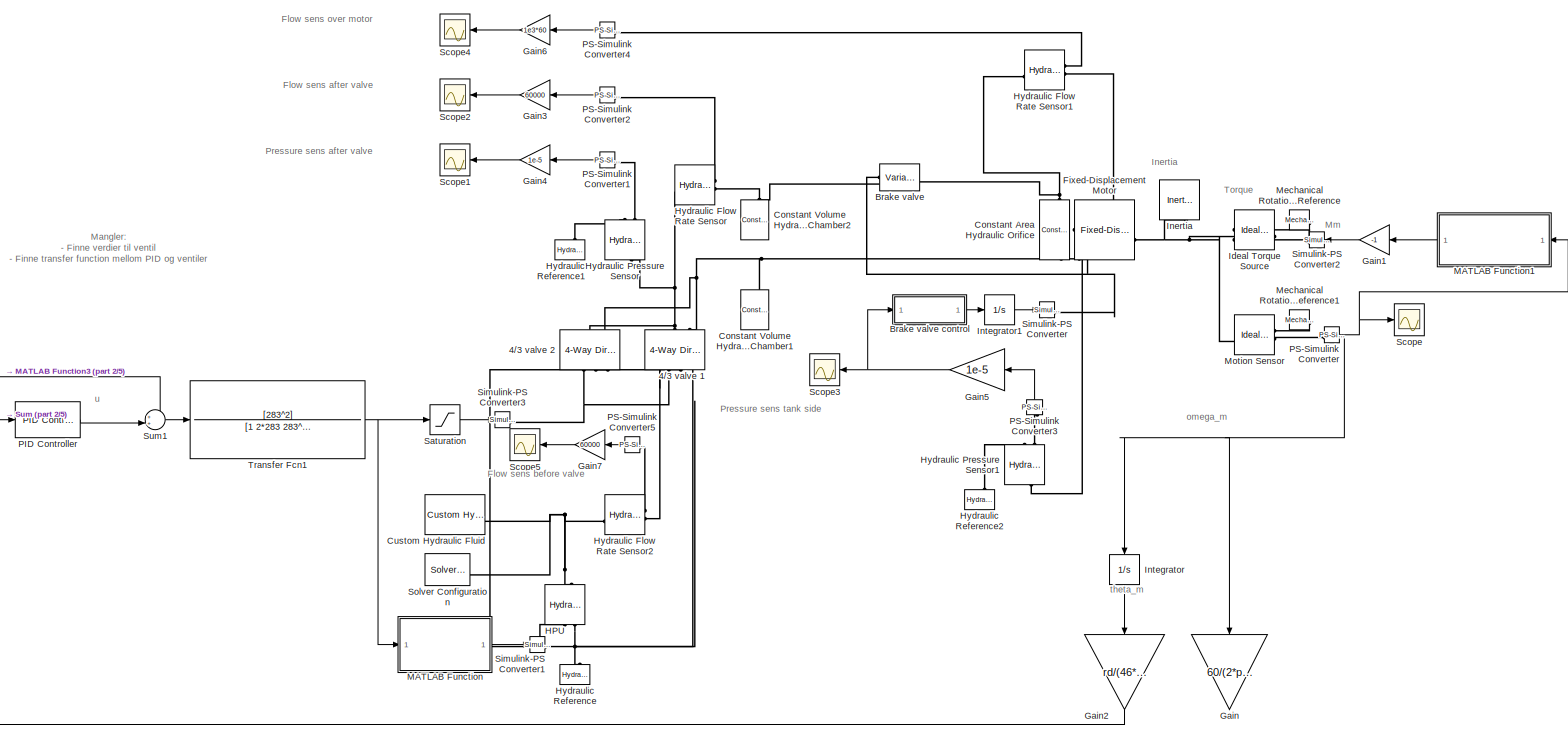
[diagram: root canvas - part 1/5, top center region]
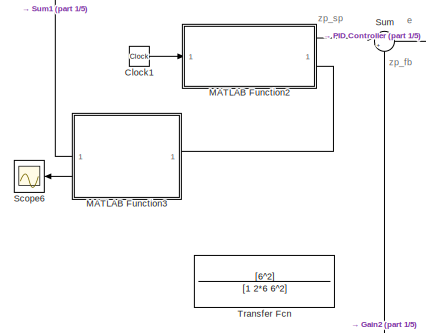
[diagram: root canvas - part 2/5, middle left region]
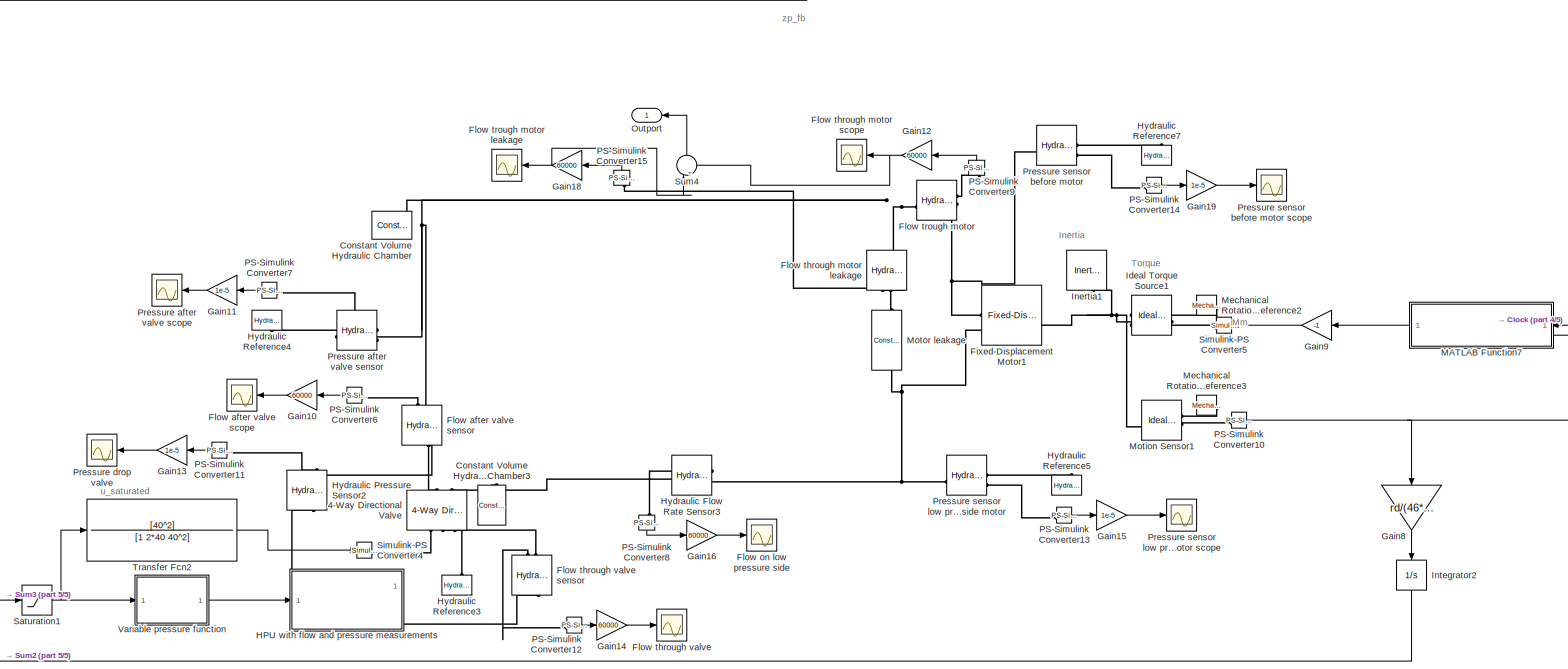
[diagram: root canvas - part 3/5, bottom center region]
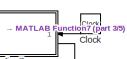
[diagram: root canvas - part 4/5, bottom right region]
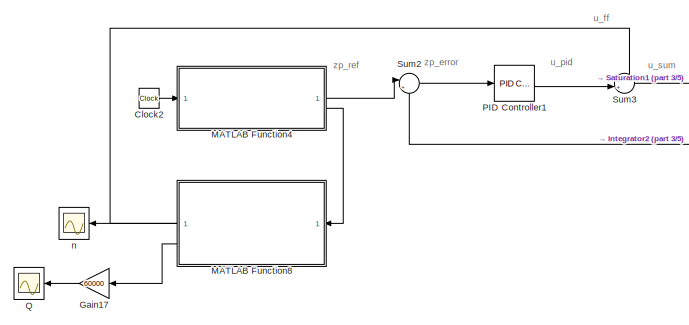
[diagram: root canvas - part 5/5, bottom left region]
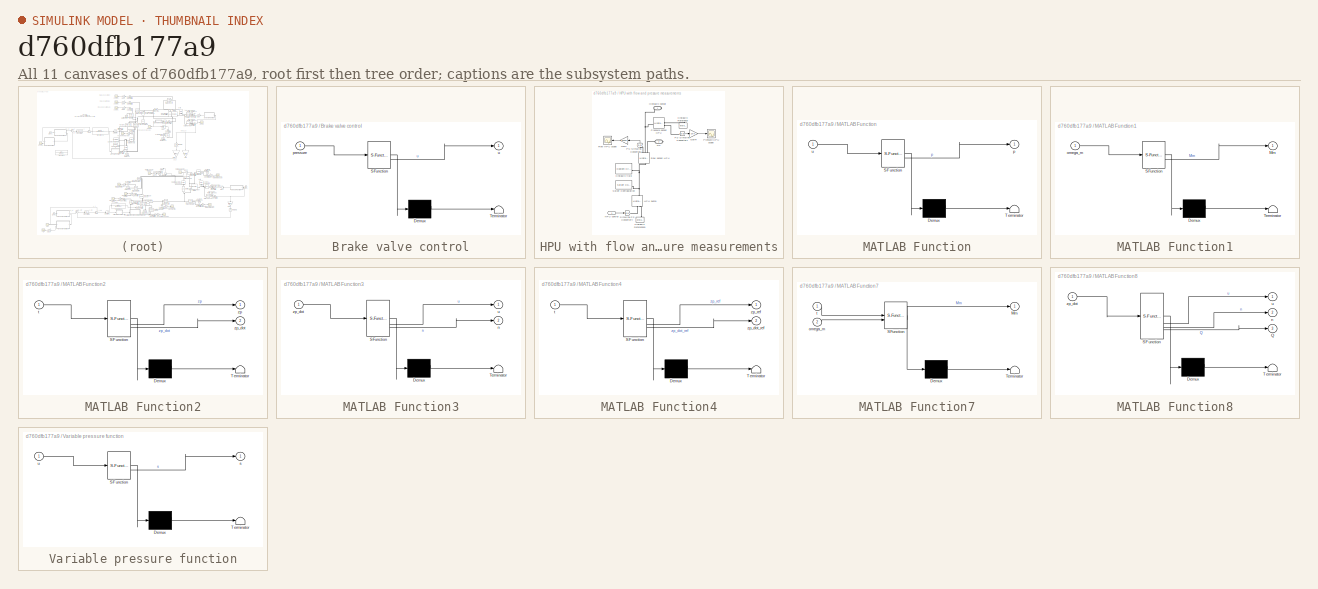
[diagram: thumbnail index - all 11 canvases of the model, root first then tree order]
MODEL slx_d760dfb177a9
KIND model
CONFIG AbsTol = auto
CONFIG EnableMultiTasking = off
CONFIG FixedStep = auto
CONFIG MaxStep = auto
CONFIG MinStep = auto
CONFIG RelTol = 1e-3
CONFIG SampleTimeConstraint = Unconstrained
CONFIG SolverName = VariableStepAuto
CONFIG StartTime = 0.0
CONFIG StopTime = 20
WORKSPACE source: MATLAB code (in-file)
WORKSPACE rho = 875
WORKSPACE P_r = 70e5  (= 7000000)
WORKSPACE Cd = 0.7
WORKSPACE Q_r = 200/6e4  (= 0.00333333333333)
WORKSPACE AdMax = Q_r/Cd/sqrt(2/rho*P_r/2)
WORKSPACE g = 9.81
WORKSPACE zw = 0.8
WORKSPACE tw = 10
WORKSPACE ig = 46
WORKSPACE m = 9000
WORKSPACE mueq = 0.15
WORKSPACE dd = 0.45
WORKSPACE nyv = 0.92
WORKSPACE rd = dd/2  (= 0.225)
WORKSPACE omega0 = 5
WORKSPACE omegap = 1500
WORKSPACE nsh = 3
WORKSPACE gearrationsh = nsh.*2
BLOCK [Reference] 4-Way Directional Valve  REF=sh_lib/Valves/Directional Valves/4-Way Directional
Valve
  NameLocation = right
  SourceBlock = sh_lib/Valves/Directional Valves/4-Way Directional\nValve
  SourceType = 4-Way Directional\nValve
BLOCK [Reference] 4//3 valve 1  REF=sh_lib/Valves/Directional Valves/4-Way Directional
Valve
  Commented = on
  NameLocation = right
  SourceBlock = sh_lib/Valves/Directional Valves/4-Way Directional\nValve
  SourceType = 4-Way Directional\nValve
BLOCK [Reference] 4//3 valve 2  REF=sh_lib/Valves/Directional Valves/4-Way Directional
Valve
  Commented = on
  NameLocation = left
  SourceBlock = sh_lib/Valves/Directional Valves/4-Way Directional\nValve
  SourceType = 4-Way Directional\nValve
BLOCK [Reference] Brake valve  REF=sh_lib/Orifices/Variable Orifice
  Commented = on
  SourceBlock = sh_lib/Orifices/Variable Orifice
  SourceType = Variable Orifice
BLOCK [SubSystem] Brake valve control
  Commented = on
  ErrorFcn = Stateflow.Translate.translate
  LibrarySourceBlock = simulink/User-Defined\nFunctions/MATLAB Function
  PermitHierarchicalResolution = ExplicitOnly
  SFBlockType = MATLAB Function
  TreatAsAtomicUnit = on
BLOCK [Demux] Brake valve control/ Demux 
  Outputs = 1
BLOCK [S-Function] Brake valve control/ SFunction 
  EnableBusSupport = on
  FunctionName = sf_sfun
  PortCounts = [1 2]
  SFcnIsStateOwnerBlock = off
  SFunctionDeploymentMode = off
  Tag = Stateflow S-Function 2
BLOCK [Terminator] Brake valve control/ Terminator 
BLOCK [Inport] Brake valve control/pressure
BLOCK [Outport] Brake valve control/u
BLOCK [Clock] Clock
  NameLocation = top
BLOCK [Clock] Clock1
  Commented = on
BLOCK [Clock] Clock2
BLOCK [Reference] Constant Area Hydraulic Orifice  REF=fl_lib/Hydraulic/Hydraulic Elements/Constant Area
Hydraulic Orifice
  Commented = on
  NameLocation = left
  SourceBlock = fl_lib/Hydraulic/Hydraulic Elements/Constant Area\nHydraulic Orifice
  SourceType = Constant Area\nHydraulic Orifice
BLOCK [Reference] Constant Volume Hydraulic Chamber  REF=fl_lib/Hydraulic/Hydraulic Elements/Constant Volume
Hydraulic Chamber
  SourceBlock = fl_lib/Hydraulic/Hydraulic Elements/Constant Volume\nHydraulic Chamber
  SourceType = Constant Volume\nHydraulic Chamber
BLOCK [Reference] Constant Volume Hydraulic Chamber1  REF=fl_lib/Hydraulic/Hydraulic Elements/Constant Volume
Hydraulic Chamber
  Commented = on
  NameLocation = right
  SourceBlock = fl_lib/Hydraulic/Hydraulic Elements/Constant Volume\nHydraulic Chamber
  SourceType = Constant Volume\nHydraulic Chamber
BLOCK [Reference] Constant Volume Hydraulic Chamber2  REF=fl_lib/Hydraulic/Hydraulic Elements/Constant Volume
Hydraulic Chamber
  Commented = on
  NameLocation = right
  SourceBlock = fl_lib/Hydraulic/Hydraulic Elements/Constant Volume\nHydraulic Chamber
  SourceType = Constant Volume\nHydraulic Chamber
BLOCK [Reference] Constant Volume Hydraulic Chamber3  REF=fl_lib/Hydraulic/Hydraulic Elements/Constant Volume
Hydraulic Chamber
  NameLocation = right
  SourceBlock = fl_lib/Hydraulic/Hydraulic Elements/Constant Volume\nHydraulic Chamber
  SourceType = Constant Volume\nHydraulic Chamber
BLOCK [Reference] Custom Hydraulic Fluid  REF=fl_lib/Hydraulic/Hydraulic Utilities/Custom Hydraulic
Fluid
  Commented = on
  SourceBlock = fl_lib/Hydraulic/Hydraulic Utilities/Custom Hydraulic\nFluid
  SourceType = Custom Hydraulic\nFluid
BLOCK [Reference] Fixed-Displacement Motor  REF=sh_lib/Pumps and Motors/Fixed-Displacement
Motor
  Commented = on
  SourceBlock = sh_lib/Pumps and Motors/Fixed-Displacement\nMotor
  SourceType = Fixed-Displacement\nMotor
BLOCK [Reference] Fixed-Displacement Motor1  REF=sh_lib/Pumps and Motors/Fixed-Displacement
Motor
  SourceBlock = sh_lib/Pumps and Motors/Fixed-Displacement\nMotor
  SourceType = Fixed-Displacement\nMotor
BLOCK [Scope] Flow after valve scope
  Floating = off
  NameLocation = top
  NumInputPorts = 1
  ScopeSpecificationString = Simulink.scopes.TimeScopeBlockCfg('CurrentConfiguration', extmgr.ConfigurationSet(extmgr.Configuration('Core','General UI',true),extmgr.Configuration('Core','Source UI',true),extmgr.Configuration('Sources','WiredSimulink',true,'DataLoggingVariableName','ScopeData4'),extmgr.Configuration('Visuals','Time Domain',true,'SerializedDisplays',{struct('MinYLimReal','-232.62772','MaxYLimReal','285.45786','...<+1412ch>
BLOCK [Reference] Flow after valve sensor  REF=fl_lib/Hydraulic/Hydraulic Sensors/Hydraulic Flow Rate
Sensor
  NameLocation = right
  SourceBlock = fl_lib/Hydraulic/Hydraulic Sensors/Hydraulic Flow Rate\nSensor
  SourceType = Hydraulic Flow Rate\nSensor
BLOCK [Scope] Flow on low pressure side
  Floating = off
  NumInputPorts = 1
  ScopeSpecificationString = Simulink.scopes.TimeScopeBlockCfg('CurrentConfiguration', extmgr.ConfigurationSet(extmgr.Configuration('Core','General UI',true),extmgr.Configuration('Core','Source UI',true),extmgr.Configuration('Sources','WiredSimulink',true,'DataLoggingVariableName','ScopeData1'),extmgr.Configuration('Visuals','Time Domain',true,'SerializedDisplays',{struct('MinYLimReal','-202.04036','MaxYLimReal','242.42634','...<+1412ch>
BLOCK [Reference] Flow through motor leakage  REF=fl_lib/Hydraulic/Hydraulic Sensors/Hydraulic Flow Rate
Sensor
  NameLocation = left
  SourceBlock = fl_lib/Hydraulic/Hydraulic Sensors/Hydraulic Flow Rate\nSensor
  SourceType = Hydraulic Flow Rate\nSensor
BLOCK [Scope] Flow through motor scope
  Floating = off
  NameLocation = top
  NumInputPorts = 1
  ScopeSpecificationString = Simulink.scopes.TimeScopeBlockCfg('CurrentConfiguration', extmgr.ConfigurationSet(extmgr.Configuration('Core','General UI',true),extmgr.Configuration('Core','Source UI',true),extmgr.Configuration('Sources','WiredSimulink',true,'DataLoggingVariableName','ScopeData5'),extmgr.Configuration('Visuals','Time Domain',true,'SerializedDisplays',{struct('MinYLimReal','-211.60834','MaxYLimReal','249.94318','...<+1379ch>
BLOCK [Scope] Flow through valve
  Floating = off
  NumInputPorts = 1
  ScopeSpecificationString = Simulink.scopes.TimeScopeBlockCfg('CurrentConfiguration', extmgr.ConfigurationSet(extmgr.Configuration('Core','General UI',true),extmgr.Configuration('Core','Source UI',true),extmgr.Configuration('Sources','WiredSimulink',true,'DataLoggingVariableName','ScopeData7'),extmgr.Configuration('Visuals','Time Domain',true,'SerializedDisplays',{struct('MinYLimReal','-89.82835','MaxYLimReal','806.79653','Y...<+1375ch>
BLOCK [Reference] Flow through valve sensor  REF=fl_lib/Hydraulic/Hydraulic Sensors/Hydraulic Flow Rate
Sensor
  NameLocation = right
  SourceBlock = fl_lib/Hydraulic/Hydraulic Sensors/Hydraulic Flow Rate\nSensor
  SourceType = Hydraulic Flow Rate\nSensor
BLOCK [Reference] Flow trough motor  REF=fl_lib/Hydraulic/Hydraulic Sensors/Hydraulic Flow Rate
Sensor
  SourceBlock = fl_lib/Hydraulic/Hydraulic Sensors/Hydraulic Flow Rate\nSensor
  SourceType = Hydraulic Flow Rate\nSensor
BLOCK [Scope] Flow trough motor leakage
  Floating = off
  NameLocation = top
  NumInputPorts = 1
  ScopeSpecificationString = Simulink.scopes.TimeScopeBlockCfg('CurrentConfiguration', extmgr.ConfigurationSet(extmgr.Configuration('Core','General UI',true),extmgr.Configuration('Core','Source UI',true),extmgr.Configuration('Sources','WiredSimulink',true,'DataLoggingVariableName','ScopeData2'),extmgr.Configuration('Visuals','Time Domain',true,'SerializedDisplays',{struct('MinYLimReal','-202.04036','MaxYLimReal','242.42634','...<+1412ch>
BLOCK [Gain] Gain
  Commented = on
  Gain = 60/(2*pi)
  NameLocation = left
BLOCK [Gain] Gain1
  Commented = on
  Gain = -1
  NameLocation = top
BLOCK [Gain] Gain10
  Gain = 60000
  NameLocation = top
BLOCK [Gain] Gain11
  Gain = 1e-5
  NameLocation = top
BLOCK [Gain] Gain12
  Gain = 60000
  NameLocation = top
BLOCK [Gain] Gain13
  Gain = 1e-5
  NameLocation = top
BLOCK [Gain] Gain14
  Gain = 60000
BLOCK [Gain] Gain15
  Gain = 1e-5
BLOCK [Gain] Gain16
  Gain = 60000
BLOCK [Gain] Gain17
  Gain = 60000
  NameLocation = top
BLOCK [Gain] Gain18
  Gain = 60000
  NameLocation = top
BLOCK [Gain] Gain19
  Gain = 1e-5
BLOCK [Gain] Gain2
  Commented = on
  Gain = rd/(46*6)
  NameLocation = left
BLOCK [Gain] Gain3
  Commented = on
  Gain = 60000
  NameLocation = top
BLOCK [Gain] Gain4
  Commented = on
  Gain = 1e-5
  NameLocation = top
BLOCK [Gain] Gain5
  Commented = on
  Gain = 1e-5
  NameLocation = top
BLOCK [Gain] Gain6
  Commented = on
  Gain = 1e3*60
  NameLocation = top
BLOCK [Gain] Gain7
  Commented = on
  Gain = 60000
  NameLocation = top
BLOCK [Gain] Gain8
  Gain = rd/(46*6)
  NameLocation = left
BLOCK [Gain] Gain9
  Gain = -1
  NameLocation = top
BLOCK [Reference] HPU  REF=fl_lib/Hydraulic/Hydraulic Sources/Hydraulic Pressure
Source
  Commented = on
  NameLocation = right
  SourceBlock = fl_lib/Hydraulic/Hydraulic Sources/Hydraulic Pressure\nSource
  SourceType = Hydraulic Pressure\nSource
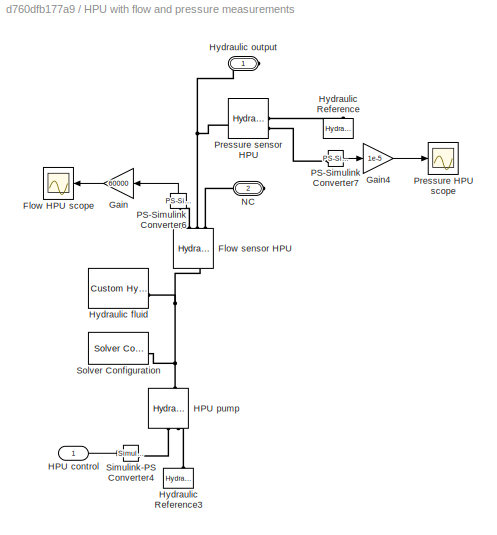
BLOCK [SubSystem] HPU with flow and pressure measurements
BLOCK [Scope] HPU with flow and pressure measurements/Flow HPU scope
  Floating = off
  NameLocation = top
  NumInputPorts = 1
  ScopeSpecificationString = Simulink.scopes.TimeScopeBlockCfg('CurrentConfiguration', extmgr.ConfigurationSet(extmgr.Configuration('Core','General UI',true),extmgr.Configuration('Core','Source UI',true),extmgr.Configuration('Sources','WiredSimulink',true,'DataLoggingVariableName','ScopeData1'),extmgr.Configuration('Visuals','Time Domain',true,'SerializedDisplays',{struct('MinYLimReal','-89.82835','MaxYLimReal','806.79653','Y...<+1373ch>
BLOCK [Reference] HPU with flow and pressure measurements/Flow sensor HPU  REF=fl_lib/Hydraulic/Hydraulic Sensors/Hydraulic Flow Rate
Sensor
  NameLocation = right
  SourceBlock = fl_lib/Hydraulic/Hydraulic Sensors/Hydraulic Flow Rate\nSensor
  SourceType = Hydraulic Flow Rate\nSensor
BLOCK [Gain] HPU with flow and pressure measurements/Gain
  Gain = 60000
  NameLocation = top
BLOCK [Gain] HPU with flow and pressure measurements/Gain4
  Gain = 1e-5
BLOCK [Inport] HPU with flow and pressure measurements/HPU control
BLOCK [Reference] HPU with flow and pressure measurements/HPU pump  REF=fl_lib/Hydraulic/Hydraulic Sources/Hydraulic Pressure
Source
  NameLocation = right
  SourceBlock = fl_lib/Hydraulic/Hydraulic Sources/Hydraulic Pressure\nSource
  SourceType = Hydraulic Pressure\nSource
BLOCK [Reference] HPU with flow and pressure measurements/Hydraulic Reference  REF=fl_lib/Hydraulic/Hydraulic Elements/Hydraulic Reference
  NameLocation = right
  SourceBlock = fl_lib/Hydraulic/Hydraulic Elements/Hydraulic Reference
  SourceType = Hydraulic Reference
BLOCK [Reference] HPU with flow and pressure measurements/Hydraulic Reference3  REF=fl_lib/Hydraulic/Hydraulic Elements/Hydraulic Reference
  NameLocation = right
  SourceBlock = fl_lib/Hydraulic/Hydraulic Elements/Hydraulic Reference
  SourceType = Hydraulic Reference
BLOCK [Reference] HPU with flow and pressure measurements/Hydraulic fluid  REF=fl_lib/Hydraulic/Hydraulic Utilities/Custom Hydraulic
Fluid
  SourceBlock = fl_lib/Hydraulic/Hydraulic Utilities/Custom Hydraulic\nFluid
  SourceType = Custom Hydraulic\nFluid
BLOCK [PMIOPort] HPU with flow and pressure measurements/Hydraulic output
  Side = Right
BLOCK [PMIOPort] HPU with flow and pressure measurements/NC
  Port = 2
  Side = Right
BLOCK [Reference] HPU with flow and pressure measurements/PS-Simulink Converter6  REF=nesl_utility/PS-Simulink
Converter
  NameLocation = right
  SourceBlock = nesl_utility/PS-Simulink\nConverter
  SourceType = PS-Simulink\nConverter
BLOCK [Reference] HPU with flow and pressure measurements/PS-Simulink Converter7  REF=nesl_utility/PS-Simulink
Converter
  SourceBlock = nesl_utility/PS-Simulink\nConverter
  SourceType = PS-Simulink\nConverter
BLOCK [Scope] HPU with flow and pressure measurements/Pressure HPU scope
  Floating = off
  NumInputPorts = 1
  ScopeSpecificationString = Simulink.scopes.TimeScopeBlockCfg('CurrentConfiguration', extmgr.ConfigurationSet(extmgr.Configuration('Core','General UI',true),extmgr.Configuration('Core','Source UI',true),extmgr.Configuration('Sources','WiredSimulink',true,'DataLoggingVariableName','ScopeData2'),extmgr.Configuration('Visuals','Time Domain',true,'SerializedDisplays',{struct('MinYLimReal','125.00000','MaxYLimReal','325.00000','Y...<+1378ch>
BLOCK [Reference] HPU with flow and pressure measurements/Pressure sensor HPU  REF=fl_lib/Hydraulic/Hydraulic Sensors/Hydraulic Pressure
Sensor
  SourceBlock = fl_lib/Hydraulic/Hydraulic Sensors/Hydraulic Pressure\nSensor
  SourceType = Hydraulic Pressure\nSensor
BLOCK [Reference] HPU with flow and pressure measurements/Simulink-PS Converter4  REF=nesl_utility/Simulink-PS
Converter
  SourceBlock = nesl_utility/Simulink-PS\nConverter
  SourceType = Simulink-PS\nConverter
BLOCK [Reference] HPU with flow and pressure measurements/Solver Configuration  REF=nesl_utility/Solver
Configuration
  SourceBlock = nesl_utility/Solver\nConfiguration
  SourceType = Solver\nConfiguration
BLOCK [Reference] Hydraulic Flow Rate Sensor  REF=fl_lib/Hydraulic/Hydraulic Sensors/Hydraulic Flow Rate
Sensor
  Commented = on
  NameLocation = right
  SourceBlock = fl_lib/Hydraulic/Hydraulic Sensors/Hydraulic Flow Rate\nSensor
  SourceType = Hydraulic Flow Rate\nSensor
BLOCK [Reference] Hydraulic Flow Rate Sensor1  REF=fl_lib/Hydraulic/Hydraulic Sensors/Hydraulic Flow Rate
Sensor
  Commented = on
  SourceBlock = fl_lib/Hydraulic/Hydraulic Sensors/Hydraulic Flow Rate\nSensor
  SourceType = Hydraulic Flow Rate\nSensor
BLOCK [Reference] Hydraulic Flow Rate Sensor2  REF=fl_lib/Hydraulic/Hydraulic Sensors/Hydraulic Flow Rate
Sensor
  Commented = on
  SourceBlock = fl_lib/Hydraulic/Hydraulic Sensors/Hydraulic Flow Rate\nSensor
  SourceType = Hydraulic Flow Rate\nSensor
BLOCK [Reference] Hydraulic Flow Rate Sensor3  REF=fl_lib/Hydraulic/Hydraulic Sensors/Hydraulic Flow Rate
Sensor
  NameLocation = top
  SourceBlock = fl_lib/Hydraulic/Hydraulic Sensors/Hydraulic Flow Rate\nSensor
  SourceType = Hydraulic Flow Rate\nSensor
BLOCK [Reference] Hydraulic Pressure Sensor  REF=fl_lib/Hydraulic/Hydraulic Sensors/Hydraulic Pressure
Sensor
  Commented = on
  NameLocation = right
  SourceBlock = fl_lib/Hydraulic/Hydraulic Sensors/Hydraulic Pressure\nSensor
  SourceType = Hydraulic Pressure\nSensor
BLOCK [Reference] Hydraulic Pressure Sensor1  REF=fl_lib/Hydraulic/Hydraulic Sensors/Hydraulic Pressure
Sensor
  Commented = on
  NameLocation = right
  SourceBlock = fl_lib/Hydraulic/Hydraulic Sensors/Hydraulic Pressure\nSensor
  SourceType = Hydraulic Pressure\nSensor
BLOCK [Reference] Hydraulic Pressure Sensor2  REF=fl_lib/Hydraulic/Hydraulic Sensors/Hydraulic Pressure
Sensor
  NameLocation = right
  SourceBlock = fl_lib/Hydraulic/Hydraulic Sensors/Hydraulic Pressure\nSensor
  SourceType = Hydraulic Pressure\nSensor
BLOCK [Reference] Hydraulic Reference  REF=fl_lib/Hydraulic/Hydraulic Elements/Hydraulic Reference
  Commented = on
  NameLocation = right
  SourceBlock = fl_lib/Hydraulic/Hydraulic Elements/Hydraulic Reference
  SourceType = Hydraulic Reference
BLOCK [Reference] Hydraulic Reference1  REF=fl_lib/Hydraulic/Hydraulic Elements/Hydraulic Reference
  Commented = on
  NameLocation = right
  SourceBlock = fl_lib/Hydraulic/Hydraulic Elements/Hydraulic Reference
  SourceType = Hydraulic Reference
BLOCK [Reference] Hydraulic Reference2  REF=fl_lib/Hydraulic/Hydraulic Elements/Hydraulic Reference
  Commented = on
  NameLocation = right
  SourceBlock = fl_lib/Hydraulic/Hydraulic Elements/Hydraulic Reference
  SourceType = Hydraulic Reference
BLOCK [Reference] Hydraulic Reference3  REF=fl_lib/Hydraulic/Hydraulic Elements/Hydraulic Reference
  NameLocation = right
  SourceBlock = fl_lib/Hydraulic/Hydraulic Elements/Hydraulic Reference
  SourceType = Hydraulic Reference
BLOCK [Reference] Hydraulic Reference4  REF=fl_lib/Hydraulic/Hydraulic Elements/Hydraulic Reference
  NameLocation = left
  SourceBlock = fl_lib/Hydraulic/Hydraulic Elements/Hydraulic Reference
  SourceType = Hydraulic Reference
BLOCK [Reference] Hydraulic Reference5  REF=fl_lib/Hydraulic/Hydraulic Elements/Hydraulic Reference
  NameLocation = right
  SourceBlock = fl_lib/Hydraulic/Hydraulic Elements/Hydraulic Reference
  SourceType = Hydraulic Reference
BLOCK [Reference] Hydraulic Reference7  REF=fl_lib/Hydraulic/Hydraulic Elements/Hydraulic Reference
  NameLocation = right
  SourceBlock = fl_lib/Hydraulic/Hydraulic Elements/Hydraulic Reference
  SourceType = Hydraulic Reference
BLOCK [Reference] Ideal Torque Source  REF=fl_lib/Mechanical/Mechanical Sources/Ideal Torque Source
  Commented = on
  NameLocation = top
  SourceBlock = fl_lib/Mechanical/Mechanical Sources/Ideal Torque Source
  SourceType = Ideal Torque Source
BLOCK [Reference] Ideal Torque Source1  REF=fl_lib/Mechanical/Mechanical Sources/Ideal Torque Source
  NameLocation = top
  SourceBlock = fl_lib/Mechanical/Mechanical Sources/Ideal Torque Source
  SourceType = Ideal Torque Source
BLOCK [Reference] Inertia  REF=fl_lib/Mechanical/Rotational Elements/Inertia
  Commented = on
  NameLocation = left
  SourceBlock = fl_lib/Mechanical/Rotational Elements/Inertia
  SourceType = Inertia
  Tag = Factory Generic
BLOCK [Reference] Inertia1  REF=fl_lib/Mechanical/Rotational Elements/Inertia
  NameLocation = left
  SourceBlock = fl_lib/Mechanical/Rotational Elements/Inertia
  SourceType = Inertia
  Tag = Factory Generic
BLOCK [Integrator] Integrator
  Commented = on
  NameLocation = left
BLOCK [Integrator] Integrator1
  Commented = on
BLOCK [Integrator] Integrator2
  NameLocation = left
BLOCK [SubSystem] MATLAB Function
  Commented = on
  ErrorFcn = Stateflow.Translate.translate
  LibrarySourceBlock = simulink/User-Defined\nFunctions/MATLAB Function
  PermitHierarchicalResolution = ExplicitOnly
  SFBlockType = MATLAB Function
  TreatAsAtomicUnit = on
BLOCK [Demux] MATLAB Function/ Demux 
  Outputs = 1
BLOCK [S-Function] MATLAB Function/ SFunction 
  EnableBusSupport = on
  FunctionName = sf_sfun
  PortCounts = [1 2]
  SFcnIsStateOwnerBlock = off
  SFunctionDeploymentMode = off
  Tag = Stateflow S-Function 4
BLOCK [Terminator] MATLAB Function/ Terminator 
BLOCK [Outport] MATLAB Function/p
BLOCK [Inport] MATLAB Function/u
BLOCK [SubSystem] MATLAB Function1
  Commented = on
  ErrorFcn = Stateflow.Translate.translate
  LibrarySourceBlock = simulink/User-Defined\nFunctions/MATLAB Function
  NameLocation = top
  PermitHierarchicalResolution = ExplicitOnly
  SFBlockType = MATLAB Function
  TreatAsAtomicUnit = on
BLOCK [Demux] MATLAB Function1/ Demux 
  Outputs = 1
BLOCK [S-Function] MATLAB Function1/ SFunction 
  EnableBusSupport = on
  FunctionName = sf_sfun
  PortCounts = [1 2]
  SFcnIsStateOwnerBlock = off
  SFunctionDeploymentMode = off
  Tag = Stateflow S-Function 1
BLOCK [Terminator] MATLAB Function1/ Terminator 
BLOCK [Outport] MATLAB Function1/Mm
BLOCK [Inport] MATLAB Function1/omega_m
BLOCK [SubSystem] MATLAB Function2
  Commented = on
  ErrorFcn = Stateflow.Translate.translate
  LibrarySourceBlock = simulink/User-Defined\nFunctions/MATLAB Function
  PermitHierarchicalResolution = ExplicitOnly
  SFBlockType = MATLAB Function
  TreatAsAtomicUnit = on
BLOCK [Demux] MATLAB Function2/ Demux 
  Outputs = 1
BLOCK [S-Function] MATLAB Function2/ SFunction 
  EnableBusSupport = on
  FunctionName = sf_sfun
  PortCounts = [1 3]
  SFcnIsStateOwnerBlock = off
  SFunctionDeploymentMode = off
  Tag = Stateflow S-Function 3
BLOCK [Terminator] MATLAB Function2/ Terminator 
BLOCK [Inport] MATLAB Function2/t
BLOCK [Outport] MATLAB Function2/zp
BLOCK [Outport] MATLAB Function2/zp_dot
  Port = 2
BLOCK [SubSystem] MATLAB Function3
  Commented = on
  ErrorFcn = Stateflow.Translate.translate
  LibrarySourceBlock = simulink/User-Defined\nFunctions/MATLAB Function
  NameLocation = top
  PermitHierarchicalResolution = ExplicitOnly
  SFBlockType = MATLAB Function
  TreatAsAtomicUnit = on
BLOCK [Demux] MATLAB Function3/ Demux 
  Outputs = 1
BLOCK [S-Function] MATLAB Function3/ SFunction 
  EnableBusSupport = on
  FunctionName = sf_sfun
  PortCounts = [1 3]
  SFcnIsStateOwnerBlock = off
  SFunctionDeploymentMode = off
  Tag = Stateflow S-Function 5
BLOCK [Terminator] MATLAB Function3/ Terminator 
BLOCK [Outport] MATLAB Function3/n
  Port = 2
BLOCK [Outport] MATLAB Function3/u
BLOCK [Inport] MATLAB Function3/zp_dot
BLOCK [SubSystem] MATLAB Function4
  ErrorFcn = Stateflow.Translate.translate
  LibrarySourceBlock = simulink/User-Defined\nFunctions/MATLAB Function
  PermitHierarchicalResolution = ExplicitOnly
  SFBlockType = MATLAB Function
  TreatAsAtomicUnit = on
BLOCK [Demux] MATLAB Function4/ Demux 
  Outputs = 1
BLOCK [S-Function] MATLAB Function4/ SFunction 
  EnableBusSupport = on
  FunctionName = sf_sfun
  PortCounts = [1 3]
  SFcnIsStateOwnerBlock = off
  SFunctionDeploymentMode = off
  Tag = Stateflow S-Function 6
BLOCK [Terminator] MATLAB Function4/ Terminator 
BLOCK [Inport] MATLAB Function4/t
BLOCK [Outport] MATLAB Function4/zp_dot_ref
  Port = 2
BLOCK [Outport] MATLAB Function4/zp_ref
BLOCK [SubSystem] MATLAB Function7
  ErrorFcn = Stateflow.Translate.translate
  LibrarySourceBlock = simulink/User-Defined\nFunctions/MATLAB Function
  NameLocation = top
  PermitHierarchicalResolution = ExplicitOnly
  SFBlockType = MATLAB Function
  TreatAsAtomicUnit = on
BLOCK [Demux] MATLAB Function7/ Demux 
  Outputs = 1
BLOCK [S-Function] MATLAB Function7/ SFunction 
  EnableBusSupport = on
  FunctionName = sf_sfun
  PortCounts = [2 2]
  SFcnIsStateOwnerBlock = off
  SFunctionDeploymentMode = off
  Tag = Stateflow S-Function 10
BLOCK [Terminator] MATLAB Function7/ Terminator 
BLOCK [Outport] MATLAB Function7/Mm
BLOCK [Inport] MATLAB Function7/omega_m
  Port = 2
BLOCK [Inport] MATLAB Function7/t
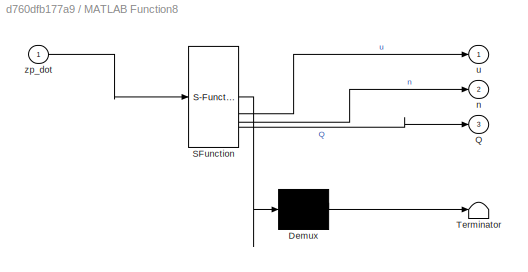
BLOCK [SubSystem] MATLAB Function8
  ErrorFcn = Stateflow.Translate.translate
  LibrarySourceBlock = simulink/User-Defined\nFunctions/MATLAB Function
  NameLocation = top
  PermitHierarchicalResolution = ExplicitOnly
  SFBlockType = MATLAB Function
  TreatAsAtomicUnit = on
BLOCK [Demux] MATLAB Function8/ Demux 
  Outputs = 1
BLOCK [S-Function] MATLAB Function8/ SFunction 
  EnableBusSupport = on
  FunctionName = sf_sfun
  PortCounts = [1 4]
  SFcnIsStateOwnerBlock = off
  SFunctionDeploymentMode = off
  Tag = Stateflow S-Function 11
BLOCK [Terminator] MATLAB Function8/ Terminator 
BLOCK [Outport] MATLAB Function8/Q
  Port = 3
BLOCK [Outport] MATLAB Function8/n
  Port = 2
BLOCK [Outport] MATLAB Function8/u
BLOCK [Inport] MATLAB Function8/zp_dot
BLOCK [Reference] Mechanical Rotational Reference  REF=fl_lib/Mechanical/Rotational Elements/Mechanical
Rotational Reference
  Commented = on
  NameLocation = top
  SourceBlock = fl_lib/Mechanical/Rotational Elements/Mechanical\nRotational Reference
  SourceType = Mechanical\nRotational Reference
BLOCK [Reference] Mechanical Rotational Reference1  REF=fl_lib/Mechanical/Rotational Elements/Mechanical
Rotational Reference
  Commented = on
  NameLocation = top
  SourceBlock = fl_lib/Mechanical/Rotational Elements/Mechanical\nRotational Reference
  SourceType = Mechanical\nRotational Reference
BLOCK [Reference] Mechanical Rotational Reference2  REF=fl_lib/Mechanical/Rotational Elements/Mechanical
Rotational Reference
  NameLocation = top
  SourceBlock = fl_lib/Mechanical/Rotational Elements/Mechanical\nRotational Reference
  SourceType = Mechanical\nRotational Reference
BLOCK [Reference] Mechanical Rotational Reference3  REF=fl_lib/Mechanical/Rotational Elements/Mechanical
Rotational Reference
  NameLocation = top
  SourceBlock = fl_lib/Mechanical/Rotational Elements/Mechanical\nRotational Reference
  SourceType = Mechanical\nRotational Reference
BLOCK [Reference] Motion Sensor  REF=fl_lib/Mechanical/Mechanical Sensors/Ideal Rotational
Motion Sensor
  Commented = on
  SourceBlock = fl_lib/Mechanical/Mechanical Sensors/Ideal Rotational\nMotion Sensor
  SourceType = Ideal Rotational\nMotion Sensor
  Tag = Factory Generic
BLOCK [Reference] Motion Sensor1  REF=fl_lib/Mechanical/Mechanical Sensors/Ideal Rotational
Motion Sensor
  SourceBlock = fl_lib/Mechanical/Mechanical Sensors/Ideal Rotational\nMotion Sensor
  SourceType = Ideal Rotational\nMotion Sensor
  Tag = Factory Generic
BLOCK [Reference] Motor leakage  REF=fl_lib/Hydraulic/Hydraulic Elements/Constant Area
Hydraulic Orifice
  NameLocation = left
  SourceBlock = fl_lib/Hydraulic/Hydraulic Elements/Constant Area\nHydraulic Orifice
  SourceType = Constant Area\nHydraulic Orifice
BLOCK [Outport] Outport
  NameLocation = top
BLOCK [Reference] PID Controller  REF=slpidlib/PID Controller
  Commented = on
  LibrarySourceBlock = simulink/Continuous/PID Controller
  SourceBlock = slpidlib/PID Controller
  SourceType = PID 1dof
BLOCK [Reference] PID Controller1  REF=slpidlib/PID Controller
  LibrarySourceBlock = simulink/Continuous/PID Controller
  SourceBlock = slpidlib/PID Controller
  SourceType = PID 1dof
BLOCK [Reference] PS-Simulink Converter  REF=nesl_utility/PS-Simulink
Converter
  Commented = on
  SourceBlock = nesl_utility/PS-Simulink\nConverter
  SourceType = PS-Simulink\nConverter
BLOCK [Reference] PS-Simulink Converter1  REF=nesl_utility/PS-Simulink
Converter
  Commented = on
  NameLocation = top
  SourceBlock = nesl_utility/PS-Simulink\nConverter
  SourceType = PS-Simulink\nConverter
BLOCK [Reference] PS-Simulink Converter10  REF=nesl_utility/PS-Simulink
Converter
  SourceBlock = nesl_utility/PS-Simulink\nConverter
  SourceType = PS-Simulink\nConverter
BLOCK [Reference] PS-Simulink Converter11  REF=nesl_utility/PS-Simulink
Converter
  NameLocation = top
  SourceBlock = nesl_utility/PS-Simulink\nConverter
  SourceType = PS-Simulink\nConverter
BLOCK [Reference] PS-Simulink Converter12  REF=nesl_utility/PS-Simulink
Converter
  SourceBlock = nesl_utility/PS-Simulink\nConverter
  SourceType = PS-Simulink\nConverter
BLOCK [Reference] PS-Simulink Converter13  REF=nesl_utility/PS-Simulink
Converter
  SourceBlock = nesl_utility/PS-Simulink\nConverter
  SourceType = PS-Simulink\nConverter
BLOCK [Reference] PS-Simulink Converter14  REF=nesl_utility/PS-Simulink
Converter
  SourceBlock = nesl_utility/PS-Simulink\nConverter
  SourceType = PS-Simulink\nConverter
BLOCK [Reference] PS-Simulink Converter15  REF=nesl_utility/PS-Simulink
Converter
  NameLocation = right
  SourceBlock = nesl_utility/PS-Simulink\nConverter
  SourceType = PS-Simulink\nConverter
BLOCK [Reference] PS-Simulink Converter2  REF=nesl_utility/PS-Simulink
Converter
  Commented = on
  NameLocation = top
  SourceBlock = nesl_utility/PS-Simulink\nConverter
  SourceType = PS-Simulink\nConverter
BLOCK [Reference] PS-Simulink Converter3  REF=nesl_utility/PS-Simulink
Converter
  Commented = on
  NameLocation = right
  SourceBlock = nesl_utility/PS-Simulink\nConverter
  SourceType = PS-Simulink\nConverter
BLOCK [Reference] PS-Simulink Converter4  REF=nesl_utility/PS-Simulink
Converter
  Commented = on
  NameLocation = top
  SourceBlock = nesl_utility/PS-Simulink\nConverter
  SourceType = PS-Simulink\nConverter
BLOCK [Reference] PS-Simulink Converter5  REF=nesl_utility/PS-Simulink
Converter
  Commented = on
  NameLocation = top
  SourceBlock = nesl_utility/PS-Simulink\nConverter
  SourceType = PS-Simulink\nConverter
BLOCK [Reference] PS-Simulink Converter6  REF=nesl_utility/PS-Simulink
Converter
  NameLocation = top
  SourceBlock = nesl_utility/PS-Simulink\nConverter
  SourceType = PS-Simulink\nConverter
BLOCK [Reference] PS-Simulink Converter7  REF=nesl_utility/PS-Simulink
Converter
  NameLocation = top
  SourceBlock = nesl_utility/PS-Simulink\nConverter
  SourceType = PS-Simulink\nConverter
BLOCK [Reference] PS-Simulink Converter8  REF=nesl_utility/PS-Simulink
Converter
  NameLocation = left
  SourceBlock = nesl_utility/PS-Simulink\nConverter
  SourceType = PS-Simulink\nConverter
BLOCK [Reference] PS-Simulink Converter9  REF=nesl_utility/PS-Simulink
Converter
  NameLocation = right
  SourceBlock = nesl_utility/PS-Simulink\nConverter
  SourceType = PS-Simulink\nConverter
BLOCK [Scope] Pressure after valve scope
  Floating = off
  NameLocation = top
  NumInputPorts = 1
  ScopeSpecificationString = Simulink.scopes.TimeScopeBlockCfg('CurrentConfiguration', extmgr.ConfigurationSet(extmgr.Configuration('Core','General UI',true),extmgr.Configuration('Core','Source UI',true),extmgr.Configuration('Sources','WiredSimulink',true,'DataLoggingVariableName','ScopeData3'),extmgr.Configuration('Visuals','Time Domain',true,'SerializedDisplays',{struct('MinYLimReal','173.17967','MaxYLimReal','233.10082','Y...<+1410ch>
BLOCK [Reference] Pressure after valve sensor  REF=fl_lib/Hydraulic/Hydraulic Sensors/Hydraulic Pressure
Sensor
  NameLocation = top
  SourceBlock = fl_lib/Hydraulic/Hydraulic Sensors/Hydraulic Pressure\nSensor
  SourceType = Hydraulic Pressure\nSensor
BLOCK [Scope] Pressure drop valve
  Floating = off
  NameLocation = top
  NumInputPorts = 1
  ScopeSpecificationString = Simulink.scopes.TimeScopeBlockCfg('CurrentConfiguration', extmgr.ConfigurationSet(extmgr.Configuration('Core','General UI',true),extmgr.Configuration('Core','Source UI',true),extmgr.Configuration('Sources','WiredSimulink',true,'DataLoggingVariableName','ScopeData6'),extmgr.Configuration('Visuals','Time Domain',true,'SerializedDisplays',{struct('MinYLimReal','-27.99707','MaxYLimReal','253.11079','Y...<+1405ch>
BLOCK [Reference] Pressure sensor before motor  REF=fl_lib/Hydraulic/Hydraulic Sensors/Hydraulic Pressure
Sensor
  SourceBlock = fl_lib/Hydraulic/Hydraulic Sensors/Hydraulic Pressure\nSensor
  SourceType = Hydraulic Pressure\nSensor
BLOCK [Scope] Pressure sensor before motor scope
  Floating = off
  NumInputPorts = 1
  ScopeSpecificationString = Simulink.scopes.TimeScopeBlockCfg('CurrentConfiguration', extmgr.ConfigurationSet(extmgr.Configuration('Core','General UI',true),extmgr.Configuration('Core','Source UI',true),extmgr.Configuration('Sources','WiredSimulink',true,'DataLoggingVariableName','ScopeData11'),extmgr.Configuration('Visuals','Time Domain',true,'SerializedDisplays',{struct('MinYLimReal','-28.11079','MaxYLimReal','252.99707','...<+1407ch>
BLOCK [Reference] Pressure sensor low pressure side motor  REF=fl_lib/Hydraulic/Hydraulic Sensors/Hydraulic Pressure
Sensor
  SourceBlock = fl_lib/Hydraulic/Hydraulic Sensors/Hydraulic Pressure\nSensor
  SourceType = Hydraulic Pressure\nSensor
BLOCK [Scope] Pressure sensor low pressure side motor scope
  Floating = off
  NumInputPorts = 1
  ScopeSpecificationString = Simulink.scopes.TimeScopeBlockCfg('CurrentConfiguration', extmgr.ConfigurationSet(extmgr.Configuration('Core','General UI',true),extmgr.Configuration('Core','Source UI',true),extmgr.Configuration('Sources','WiredSimulink',true,'DataLoggingVariableName','ScopeData8'),extmgr.Configuration('Visuals','Time Domain',true,'SerializedDisplays',{struct('MinYLimReal','2.20382','MaxYLimReal','80.16565','YLab...<+1400ch>
BLOCK [Scope] Q
  Floating = off
  NameLocation = top
  NumInputPorts = 1
  ScopeSpecificationString = Simulink.scopes.TimeScopeBlockCfg('CurrentConfiguration', extmgr.ConfigurationSet(extmgr.Configuration('Core','General UI',true),extmgr.Configuration('Core','Source UI',true),extmgr.Configuration('Sources','WiredSimulink',true,'DataLoggingVariableName','ScopeData10'),extmgr.Configuration('Visuals','Time Domain',true,'SerializedDisplays',{struct('MinYLimReal','-206.81597','MaxYLimReal','206.816','Y...<+1372ch>
BLOCK [Saturate] Saturation
  Commented = on
  LowerLimit = -1
  UpperLimit = 1
BLOCK [Saturate] Saturation1
  LowerLimit = -1
  UpperLimit = 1
BLOCK [Scope] Scope
  Commented = on
  Floating = off
  NumInputPorts = 1
  ScopeSpecificationString = Simulink.scopes.TimeScopeBlockCfg('CurrentConfiguration', extmgr.ConfigurationSet(extmgr.Configuration('Core','General UI',true),extmgr.Configuration('Core','Source UI',true),extmgr.Configuration('Sources','WiredSimulink',true),extmgr.Configuration('Visuals','Time Domain',true,'SerializedDisplays',{struct('MinYLimReal','-2161.036','MaxYLimReal','1288.98241','YLabelReal','','MinYLimMag','  0.00000'...<+1390ch>
BLOCK [Scope] Scope1
  Commented = on
  Floating = off
  NameLocation = top
  NumInputPorts = 1
  ScopeSpecificationString = Simulink.scopes.TimeScopeBlockCfg('CurrentConfiguration', extmgr.ConfigurationSet(extmgr.Configuration('Core','General UI',true),extmgr.Configuration('Core','Source UI',true),extmgr.Configuration('Sources','WiredSimulink',true,'DataLoggingVariableName','ScopeData1'),extmgr.Configuration('Visuals','Time Domain',true,'SerializedDisplays',{struct('MinYLimReal','-149.19695','MaxYLimReal','1336.49448',...<+1411ch>
BLOCK [Scope] Scope2
  Commented = on
  Floating = off
  NameLocation = top
  NumInputPorts = 1
  ScopeSpecificationString = Simulink.scopes.TimeScopeBlockCfg('CurrentConfiguration', extmgr.ConfigurationSet(extmgr.Configuration('Core','General UI',true),extmgr.Configuration('Core','Source UI',true),extmgr.Configuration('Sources','WiredSimulink',true,'DataLoggingVariableName','ScopeData2'),extmgr.Configuration('Visuals','Time Domain',true,'SerializedDisplays',{struct('MinYLimReal','-620.34903','MaxYLimReal','793.26135','...<+1413ch>
BLOCK [Scope] Scope3
  Commented = on
  Floating = off
  NameLocation = top
  NumInputPorts = 1
  ScopeSpecificationString = Simulink.scopes.TimeScopeBlockCfg('CurrentConfiguration', extmgr.ConfigurationSet(extmgr.Configuration('Core','General UI',true),extmgr.Configuration('Core','Source UI',true),extmgr.Configuration('Sources','WiredSimulink',true,'DataLoggingVariableName','ScopeData1'),extmgr.Configuration('Visuals','Time Domain',true,'SerializedDisplays',{struct('MinYLimReal','-35.18604','MaxYLimReal','306.54183','Y...<+1403ch>
BLOCK [Scope] Scope4
  Commented = on
  Floating = off
  NameLocation = top
  NumInputPorts = 1
  ScopeSpecificationString = Simulink.scopes.TimeScopeBlockCfg('CurrentConfiguration', extmgr.ConfigurationSet(extmgr.Configuration('Core','General UI',true),extmgr.Configuration('Core','Source UI',true),extmgr.Configuration('Sources','WiredSimulink',true,'DataLoggingVariableName','ScopeData2'),extmgr.Configuration('Visuals','Time Domain',true,'SerializedDisplays',{struct('MinYLimReal','-153.52834','MaxYLimReal','129.69555','...<+1407ch>
BLOCK [Scope] Scope5
  Commented = on
  Floating = off
  NameLocation = top
  NumInputPorts = 1
  ScopeSpecificationString = Simulink.scopes.TimeScopeBlockCfg('CurrentConfiguration', extmgr.ConfigurationSet(extmgr.Configuration('Core','General UI',true),extmgr.Configuration('Core','Source UI',true),extmgr.Configuration('Sources','WiredSimulink',true,'DataLoggingVariableName','ScopeData1'),extmgr.Configuration('Visuals','Time Domain',true,'SerializedDisplays',{struct('MinYLimReal','-42.40808','MaxYLimReal','117.37347','Y...<+1407ch>
BLOCK [Scope] Scope6
  Commented = on
  Floating = off
  NameLocation = top
  NumInputPorts = 1
  ScopeSpecificationString = Simulink.scopes.TimeScopeBlockCfg('CurrentConfiguration', extmgr.ConfigurationSet(extmgr.Configuration('Core','General UI',true),extmgr.Configuration('Core','Source UI',true),extmgr.Configuration('Sources','WiredSimulink',true,'DataLoggingVariableName','ScopeData2'),extmgr.Configuration('Visuals','Time Domain',true,'SerializedDisplays',{struct('MinYLimReal','-4842.68397','MaxYLimReal','4842.68568'...<+1399ch>
BLOCK [Reference] Simulink-PS Converter  REF=nesl_utility/Simulink-PS
Converter
  Commented = on
  SourceBlock = nesl_utility/Simulink-PS\nConverter
  SourceType = Simulink-PS\nConverter
BLOCK [Reference] Simulink-PS Converter1  REF=nesl_utility/Simulink-PS
Converter
  Commented = on
  SourceBlock = nesl_utility/Simulink-PS\nConverter
  SourceType = Simulink-PS\nConverter
BLOCK [Reference] Simulink-PS Converter2  REF=nesl_utility/Simulink-PS
Converter
  Commented = on
  NameLocation = top
  SourceBlock = nesl_utility/Simulink-PS\nConverter
  SourceType = Simulink-PS\nConverter
BLOCK [Reference] Simulink-PS Converter3  REF=nesl_utility/Simulink-PS
Converter
  Commented = on
  SourceBlock = nesl_utility/Simulink-PS\nConverter
  SourceType = Simulink-PS\nConverter
BLOCK [Reference] Simulink-PS Converter4  REF=nesl_utility/Simulink-PS
Converter
  SourceBlock = nesl_utility/Simulink-PS\nConverter
  SourceType = Simulink-PS\nConverter
BLOCK [Reference] Simulink-PS Converter5  REF=nesl_utility/Simulink-PS
Converter
  NameLocation = top
  SourceBlock = nesl_utility/Simulink-PS\nConverter
  SourceType = Simulink-PS\nConverter
BLOCK [Reference] Solver Configuration  REF=nesl_utility/Solver
Configuration
  Commented = on
  SourceBlock = nesl_utility/Solver\nConfiguration
  SourceType = Solver\nConfiguration
BLOCK [Sum] Sum
  Commented = on
  Inputs = |+-
BLOCK [Sum] Sum1
  Commented = on
  Inputs = ++|
BLOCK [Sum] Sum2
  Inputs = |+-
BLOCK [Sum] Sum3
  Inputs = ++|
BLOCK [Sum] Sum4
  Inputs = |++
  NameLocation = right
BLOCK [TransferFcn] Transfer Fcn
  Commented = on
  Denominator = [1 2*6 6^2]
  Numerator = [6^2]
BLOCK [TransferFcn] Transfer Fcn1
  Commented = on
  Denominator = [1 2*283 283^2]
  Numerator = [283^2]
BLOCK [TransferFcn] Transfer Fcn2
  Denominator = [1 2*40 40^2]
  Numerator = [40^2]
BLOCK [SubSystem] Variable pressure function
  ErrorFcn = Stateflow.Translate.translate
  LibrarySourceBlock = simulink/User-Defined\nFunctions/MATLAB Function
  PermitHierarchicalResolution = ExplicitOnly
  SFBlockType = MATLAB Function
  TreatAsAtomicUnit = on
BLOCK [Demux] Variable pressure function/ Demux 
  Outputs = 1
BLOCK [S-Function] Variable pressure function/ SFunction 
  EnableBusSupport = on
  FunctionName = sf_sfun
  PortCounts = [1 2]
  SFcnIsStateOwnerBlock = off
  SFunctionDeploymentMode = off
  Tag = Stateflow S-Function 7
BLOCK [Terminator] Variable pressure function/ Terminator 
BLOCK [Outport] Variable pressure function/s
BLOCK [Inport] Variable pressure function/u
BLOCK [Scope] n
  Floating = off
  NameLocation = top
  NumInputPorts = 1
  ScopeSpecificationString = Simulink.scopes.TimeScopeBlockCfg('CurrentConfiguration', extmgr.ConfigurationSet(extmgr.Configuration('Core','General UI',true),extmgr.Configuration('Core','Source UI',true),extmgr.Configuration('Sources','WiredSimulink',true,'DataLoggingVariableName','ScopeData9'),extmgr.Configuration('Visuals','Time Domain',true,'SerializedDisplays',{struct('MinYLimReal','-122.66665','MaxYLimReal','122.66666','...<+1391ch>
ANNOTATION (root): zp_error
ANNOTATION (root): Flow sens after valve
ANNOTATION (root): Flow sens before valve
ANNOTATION (root): Flow sens over motor
ANNOTATION (root): Inertia
ANNOTATION (root): Mangler: - Finne verdier til ventil - Finne transfer function mellom PID og ventiler
ANNOTATION (root): Mm
ANNOTATION (root): Pressure sens after valve
ANNOTATION (root): Pressure sens tank side
ANNOTATION (root): Torque
ANNOTATION (root): e
ANNOTATION (root): omega_m
ANNOTATION (root): theta_m
ANNOTATION (root): u
ANNOTATION (root): u_ff
ANNOTATION (root): u_pid
ANNOTATION (root): u_saturated
ANNOTATION (root): u_sum
ANNOTATION (root): zp_fb
ANNOTATION (root): zp_ref
ANNOTATION (root): zp_sp
LINE Brake valve control:1 -> Integrator1:1
LINE Clock1:1 -> MATLAB Function2:1
LINE Clock2:1 -> MATLAB Function4:1
LINE Clock:1 -> MATLAB Function7:1
LINE Gain10:1 -> Flow after valve scope:1
LINE Gain11:1 -> Pressure after valve scope:1
NET Gain12:1 -> Flow through motor scope:1, Sum4:2
LINE Gain13:1 -> Pressure drop valve:1
LINE Gain14:1 -> Flow through valve:1
LINE Gain15:1 -> Pressure sensor low pressure side motor scope:1
LINE Gain16:1 -> Flow on low pressure side:1
LINE Gain17:1 -> Q:1
NET Gain18:1 -> Flow trough motor leakage:1, Sum4:1
LINE Gain19:1 -> Pressure sensor before motor scope:1
LINE Gain1:1 -> Simulink-PS Converter2:1
LINE Gain2:1 -> Sum:2
LINE Gain3:1 -> Scope2:1
LINE Gain4:1 -> Scope1:1
NET Gain5:1 -> Brake valve control:1, Scope3:1
LINE Gain6:1 -> Scope4:1
LINE Gain7:1 -> Scope5:1
LINE Gain8:1 -> Integrator2:1
LINE Gain9:1 -> Simulink-PS Converter5:1
LINE HPU with flow and pressure measurements/Gain4:1 -> HPU with flow and pressure measurements/Pressure HPU scope:1
LINE HPU with flow and pressure measurements/Gain:1 -> HPU with flow and pressure measurements/Flow HPU scope:1
LINE HPU with flow and pressure measurements/HPU control:1 -> HPU with flow and pressure measurements/Simulink-PS Converter4:1
LINE HPU with flow and pressure measurements/PS-Simulink Converter6:1 -> HPU with flow and pressure measurements/Gain:1
LINE HPU with flow and pressure measurements/PS-Simulink Converter7:1 -> HPU with flow and pressure measurements/Gain4:1
LINE Integrator1:1 -> Simulink-PS Converter:1
LINE Integrator2:1 -> Sum2:2
LINE Integrator:1 -> Gain2:1
LINE MATLAB Function1:1 -> Gain1:1
LINE MATLAB Function2:1 -> Sum:1
LINE MATLAB Function2:2 -> MATLAB Function3:1
LINE MATLAB Function3:1 -> Sum1:1
LINE MATLAB Function3:2 -> Scope6:1
LINE MATLAB Function4:1 -> Sum2:1
LINE MATLAB Function4:2 -> MATLAB Function8:1
LINE MATLAB Function7:1 -> Gain9:1
LINE MATLAB Function8:1 -> Sum3:1
LINE MATLAB Function8:2 -> n:1
LINE MATLAB Function8:3 -> Gain17:1
LINE MATLAB Function:1 -> Simulink-PS Converter1:1
LINE PID Controller1:1 -> Sum3:2
LINE PID Controller:1 -> Sum1:2
NET PS-Simulink Converter10:1 -> Gain8:1, MATLAB Function7:2
LINE PS-Simulink Converter11:1 -> Gain13:1
LINE PS-Simulink Converter12:1 -> Gain14:1
LINE PS-Simulink Converter13:1 -> Gain15:1
LINE PS-Simulink Converter14:1 -> Gain19:1
LINE PS-Simulink Converter15:1 -> Gain18:1
LINE PS-Simulink Converter1:1 -> Gain4:1
LINE PS-Simulink Converter2:1 -> Gain3:1
LINE PS-Simulink Converter3:1 -> Gain5:1
LINE PS-Simulink Converter4:1 -> Gain6:1
LINE PS-Simulink Converter5:1 -> Gain7:1
LINE PS-Simulink Converter6:1 -> Gain10:1
LINE PS-Simulink Converter7:1 -> Gain11:1
LINE PS-Simulink Converter8:1 -> Gain16:1
LINE PS-Simulink Converter9:1 -> Gain12:1
NET PS-Simulink Converter:1 -> Gain:1, Integrator:1, MATLAB Function1:1, Scope:1
NET Saturation1:1 -> Transfer Fcn2:1, Variable pressure function:1
LINE Saturation:1 -> Simulink-PS Converter3:1
LINE Sum1:1 -> Transfer Fcn1:1
LINE Sum2:1 -> PID Controller1:1
LINE Sum3:1 -> Saturation1:1
LINE Sum4:1 -> Outport:1
LINE Sum:1 -> PID Controller:1
NET Transfer Fcn1:1 -> MATLAB Function:1, Saturation:1
LINE Transfer Fcn2:1 -> Simulink-PS Converter4:1
LINE Variable pressure function:1 -> HPU with flow and pressure measurements:1
PNET net1: 4-Way Directional Valve:LConn1 -- Flow after valve sensor:LConn1 -- Hydraulic Pressure Sensor2:RConn1
PNET net2: 4-Way Directional Valve:LConn2 -- Constant Volume Hydraulic Chamber3:LConn1 -- Hydraulic Flow Rate Sensor3:RConn2
PLINE 4-Way Directional Valve:RConn1 -- Simulink-PS Converter4:RConn1
PLINE 4-Way Directional Valve:RConn2 -- Flow through valve sensor:RConn2
PLINE 4-Way Directional Valve:RConn3 -- Hydraulic Reference3:LConn1
PNET net3: 4//3 valve 1:LConn1 -- 4//3 valve 2:LConn1 -- Hydraulic Flow Rate Sensor:LConn1 -- Hydraulic Pressure Sensor:LConn1
PNET net4: 4//3 valve 1:LConn2 -- 4//3 valve 2:LConn2 -- Constant Area Hydraulic Orifice:RConn1 -- Constant Volume Hydraulic Chamber1:LConn1 -- Fixed-Displacement Motor:LConn2 -- Hydraulic Pressure Sensor1:LConn1
PNET net5: 4//3 valve 1:RConn1 -- 4//3 valve 2:RConn1 -- Simulink-PS Converter3:RConn1
PNET net6: 4//3 valve 1:RConn2 -- 4//3 valve 2:RConn2 -- Hydraulic Flow Rate Sensor2:RConn2
PNET net7: 4//3 valve 1:RConn3 -- 4//3 valve 2:RConn3 -- HPU:RConn2 -- Hydraulic Reference:LConn1
PLINE Brake valve:LConn1 -- Simulink-PS Converter:RConn1
PNET net8: Brake valve:LConn2 -- Constant Volume Hydraulic Chamber2:LConn1 -- Hydraulic Flow Rate Sensor:RConn2
PNET net9: Brake valve:RConn1 -- Constant Area Hydraulic Orifice:LConn1 -- Hydraulic Flow Rate Sensor1:LConn1
PNET net10: Constant Volume Hydraulic Chamber:LConn1 -- Flow after valve sensor:RConn2 -- Flow through motor leakage:LConn1 -- Flow trough motor:LConn1 -- Pressure after valve sensor:LConn1
PNET net11: Custom Hydraulic Fluid:RConn1 -- HPU:LConn1 -- Hydraulic Flow Rate Sensor2:LConn1 -- Solver Configuration:RConn1
PNET net12: Fixed-Displacement Motor1:LConn1 -- Flow trough motor:RConn2 -- Pressure sensor before motor:LConn1
PNET net13: Fixed-Displacement Motor1:LConn2 -- Hydraulic Flow Rate Sensor3:LConn1 -- Motor leakage:RConn1 -- Pressure sensor low pressure side motor:LConn1
PNET net14: Fixed-Displacement Motor1:RConn1 -- Ideal Torque Source1:LConn1 -- Inertia1:LConn1 -- Motion Sensor1:LConn1
PLINE Fixed-Displacement Motor:LConn1 -- Hydraulic Flow Rate Sensor1:RConn2
PNET net15: Fixed-Displacement Motor:RConn1 -- Ideal Torque Source:LConn1 -- Inertia:LConn1 -- Motion Sensor:LConn1
PLINE Flow after valve sensor:RConn1 -- PS-Simulink Converter6:LConn1
PLINE Flow through motor leakage:RConn1 -- PS-Simulink Converter15:LConn1
PLINE Flow through motor leakage:RConn2 -- Motor leakage:LConn1
PNET net16: Flow through valve sensor:LConn1 -- HPU with flow and pressure measurements:RConn1 -- Hydraulic Pressure Sensor2:LConn1
PLINE Flow through valve sensor:RConn1 -- PS-Simulink Converter12:LConn1
PLINE Flow trough motor:RConn1 -- PS-Simulink Converter9:LConn1
PNET net17: HPU with flow and pressure measurements/Flow sensor HPU:LConn1 -- HPU with flow and pressure measurements/HPU pump:LConn1 -- HPU with flow and pressure measurements/Hydraulic fluid:RConn1 -- HPU with flow and pressure measurements/Solver Configuration:RConn1
PLINE HPU with flow and pressure measurements/Flow sensor HPU:RConn1 -- HPU with flow and pressure measurements/PS-Simulink Converter6:LConn1
PNET net18: HPU with flow and pressure measurements/Flow sensor HPU:RConn2 -- HPU with flow and pressure measurements/Hydraulic output:RConn1 -- HPU with flow and pressure measurements/Pressure sensor HPU:LConn1
PLINE HPU with flow and pressure measurements/Flow sensor HPU:RConn3 -- HPU with flow and pressure measurements/NC:RConn1
PLINE HPU with flow and pressure measurements/HPU pump:RConn1 -- HPU with flow and pressure measurements/Simulink-PS Converter4:RConn1
PLINE HPU with flow and pressure measurements/HPU pump:RConn2 -- HPU with flow and pressure measurements/Hydraulic Reference3:LConn1
PLINE HPU with flow and pressure measurements/Hydraulic Reference:LConn1 -- HPU with flow and pressure measurements/Pressure sensor HPU:RConn1
PLINE HPU with flow and pressure measurements/PS-Simulink Converter7:LConn1 -- HPU with flow and pressure measurements/Pressure sensor HPU:RConn2
PLINE HPU:RConn1 -- Simulink-PS Converter1:RConn1
PLINE Hydraulic Flow Rate Sensor1:RConn1 -- PS-Simulink Converter4:LConn1
PLINE Hydraulic Flow Rate Sensor2:RConn1 -- PS-Simulink Converter5:LConn1
PLINE Hydraulic Flow Rate Sensor3:RConn1 -- PS-Simulink Converter8:LConn1
PLINE Hydraulic Flow Rate Sensor:RConn1 -- PS-Simulink Converter2:LConn1
PLINE Hydraulic Pressure Sensor1:RConn1 -- Hydraulic Reference2:LConn1
PLINE Hydraulic Pressure Sensor1:RConn2 -- PS-Simulink Converter3:LConn1
PLINE Hydraulic Pressure Sensor2:RConn2 -- PS-Simulink Converter11:LConn1
PLINE Hydraulic Pressure Sensor:RConn1 -- Hydraulic Reference1:LConn1
PLINE Hydraulic Pressure Sensor:RConn2 -- PS-Simulink Converter1:LConn1
PLINE Hydraulic Reference4:LConn1 -- Pressure after valve sensor:RConn1
PLINE Hydraulic Reference5:LConn1 -- Pressure sensor low pressure side motor:RConn1
PLINE Hydraulic Reference7:LConn1 -- Pressure sensor before motor:RConn1
PLINE Ideal Torque Source1:RConn1 -- Simulink-PS Converter5:RConn1
PLINE Ideal Torque Source1:RConn2 -- Mechanical Rotational Reference2:LConn1
PLINE Ideal Torque Source:RConn1 -- Simulink-PS Converter2:RConn1
PLINE Ideal Torque Source:RConn2 -- Mechanical Rotational Reference:LConn1
PLINE Mechanical Rotational Reference1:LConn1 -- Motion Sensor:RConn1
PLINE Mechanical Rotational Reference3:LConn1 -- Motion Sensor1:RConn1
PLINE Motion Sensor1:RConn2 -- PS-Simulink Converter10:LConn1
PLINE Motion Sensor:RConn2 -- PS-Simulink Converter:LConn1
PLINE PS-Simulink Converter13:LConn1 -- Pressure sensor low pressure side motor:RConn2
PLINE PS-Simulink Converter14:LConn1 -- Pressure sensor before motor:RConn2
PLINE PS-Simulink Converter7:LConn1 -- Pressure after valve sensor:RConn2
note: NET lines group one-source signal fan-out (src -> all destinations, sorted); 1:1 wires keep LINE; PNET lines group multi-terminal physical nets as a canonical sorted terminal list (undirected conserving connections); 2-terminal nets keep the pairwise PLINE form
CHART MATLAB Function1 states=1 transitions=1
  STATE_LABEL 'eML_blk_kernel()'
  STATE_LABEL 'SCRIPT:\nfunction Mm = omega_m2Mm(omega_m)\n\nn_sh = 3; % -\ni_g = 46; % -\nm_pl = 9000; % kg\nd_D = 0.45; % m\nmu_eq = 0.15; % -\nomega_0 = 5; % rad/s\ng = 9.81; % m/(s*s)\n\nMm = (m_pl*g*d_D)/(2*n_sh*2*i_g) * (1 + mu_eq * tanh(omega_m/omega_0));'
CHART Brake valve control states=1 transitions=1
  STATE_LABEL 'eML_blk_kernel()'
  STATE_LABEL 'SCRIPT:\nfunction u = fcn(pressure)\n\np_cr = 20; % bar\ndp_fo = 10; % bar, delta p_fully_open\n\nu = (pressure-p_cr)/dp_fo;\n\nif(u >= 1)\n    u = 1;\nelseif(u < 0)\n    u = 0;\nend'
CHART MATLAB Function2 states=1 transitions=1
  STATE_LABEL 'eML_blk_kernel()'
  STATE_LABEL 'SCRIPT:\nfunction [zp, zp_dot]  = z_height(t)\n\nz_w = 0.8; % m\nT_w = 10; % s\n\nzp = z_w * sin((2*pi*t)/T_w);\nzp_dot = (2*z_w*pi*cos((2*pi*t)/T_w))/T_w;'
CHART MATLAB Function states=1 transitions=1
  STATE_LABEL 'eML_blk_kernel()'
  STATE_LABEL 'SCRIPT:\nfunction p = variable_pressure(u)\n\nif(u > 0)\n    p = 225e5; % Pa\nelse\n    p = 40e5; % Pa\nend\n'
CHART MATLAB Function3 states=1 transitions=1
  STATE_LABEL 'eML_blk_kernel()'
  STATE_LABEL 'SCRIPT:\nfunction [u, n] = fcn(zp_dot)\n\ndd = 0.45;\nrho = 875; % kg/m^3\n\nDm = 28.1*10^-6; % m^3/rev\nn = (zp_dot/(dd/2)) * 46  * 6 *2*pi; % rev/s\n\nQ = (Dm*n);\n\nCd = 0.7;\nAdmax = (3.7646e-5)*2; % m^2\n\nu = Q/(Cd*Admax * sqrt(2/rho*35e5));'
CHART MATLAB Function4 states=1 transitions=1
  STATE_LABEL 'eML_blk_kernel()'
  STATE_LABEL 'SCRIPT:\nfunction [zp_ref, zp_dot_ref]  = z_height(t)\n\nz_w = 0.8; % m\nT_w = 10; % s\n\nzp_ref = z_w * sin((2*pi*t)/T_w);\nzp_dot_ref = (2*z_w*pi*cos((2*pi*t)/T_w))/T_w;'
CHART Variable pressure function states=1 transitions=1
  STATE_LABEL 'eML_blk_kernel()'
  STATE_LABEL 'SCRIPT:\nfunction s = vp(u)\n\nif(u > 0)\n    s = 260e5;\nelse\n    s = 260e5;\nend'
CHART MATLAB Function7 states=1 transitions=1
  STATE_LABEL 'eML_blk_kernel()'
  STATE_LABEL 'SCRIPT:\nfunction Mm = motor_moment(t, omega_m)\n\nn_sh = 3; % shieves\ni_g = 46; % gearbox ratio\nm_pl = 9000; % kg\nd_D = 0.45; % m\nmu_eq = 0.15; % -\nomega_0 = 5; % rad/s\ng = 9.81; % m/(s^2)\n\nif(t < 10^-3)\n    omega_m = 0;\nend\n\nMm = (m_pl*g*d_D)/(2*n_sh*2*i_g) * (1 + mu_eq * tanh(omega_m/omega_0));'
CHART MATLAB Function8 states=1 transitions=1
  STATE_LABEL 'eML_blk_kernel()'
  STATE_LABEL 'SCRIPT:\nfunction [u, n, Q] = ff(zp_dot)\n\ndd = 0.45;\nrho = 875; % kg/m^3\n\nDm = 28.1*10^-6; % m^3/rev\nn = (zp_dot/(dd/2)) * 46  * 6 / (2*pi); % rev/s\n\nQ = (Dm*n);\n\nCd = 0.7;\nAdmax = (3.9930e-5)*2; % m^2\n\nu = (Q/(Cd*Admax * sqrt(2/rho*35e5)));\n\n% m/s'
CHART  states=0 transitions=0
CHART  states=0 transitions=0
CHART  states=0 transitions=0
CHART  states=0 transitions=0
CHART  states=0 transitions=0
CHART  states=0 transitions=0
CHART  states=0 transitions=0
CHART  states=0 transitions=0
CHART  states=0 transitions=0
